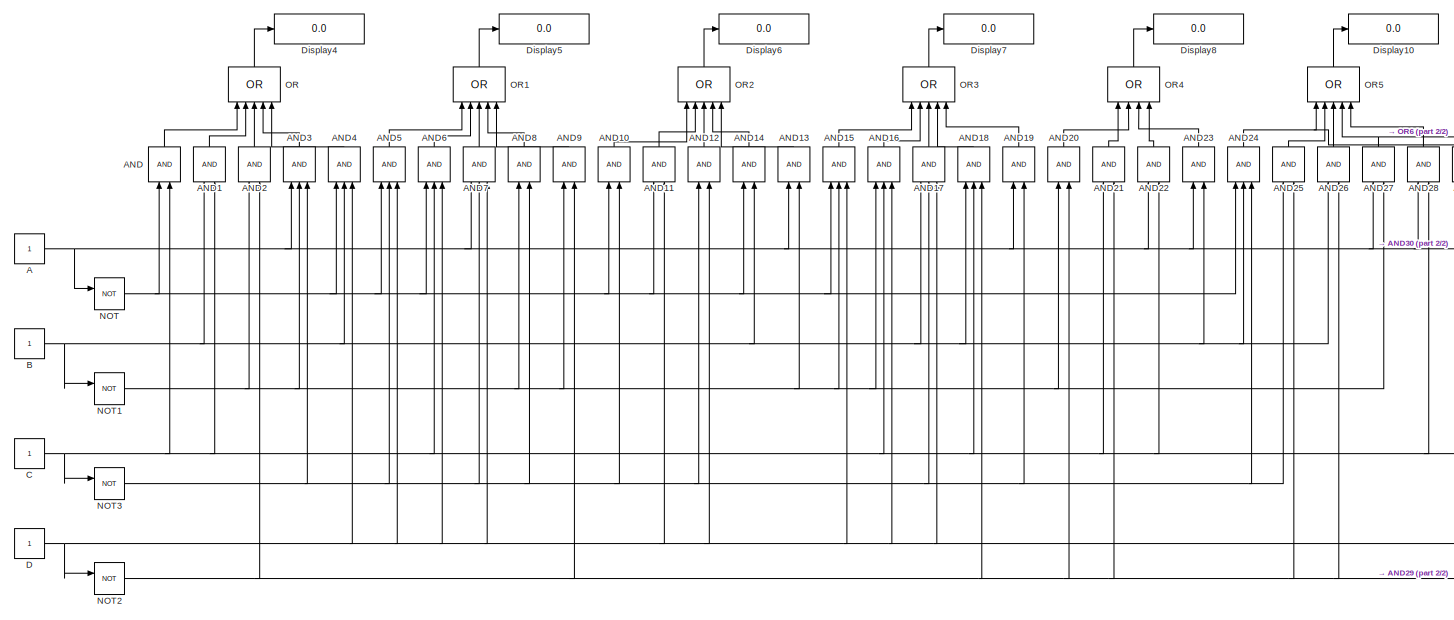
[diagram: root canvas - part 1/2, most of the canvas]
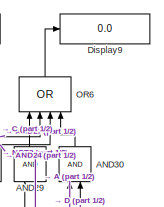
[diagram: root canvas - part 2/2, top right region]
MODEL slx_f6d2cf7f9183
KIND model
CONFIG AbsTol = auto
CONFIG EnableMultiTasking = off
CONFIG FixedStep = auto
CONFIG MaxStep = auto
CONFIG MinStep = auto
CONFIG RelTol = 1e-3
CONFIG SampleTimeConstraint = Unconstrained
CONFIG SolverName = VariableStepAuto
CONFIG StartTime = 0.0
CONFIG StopTime = 10.0
BLOCK [Constant] A
BLOCK [Logic] AND
  AllPortsSameDT = off
  IconShape = distinctive
  NameLocation = right
  OutDataTypeStr = boolean
BLOCK [Logic] AND1
  AllPortsSameDT = off
  IconShape = distinctive
  NameLocation = right
  OutDataTypeStr = boolean
BLOCK [Logic] AND10
  AllPortsSameDT = off
  IconShape = distinctive
  NameLocation = right
  OutDataTypeStr = boolean
BLOCK [Logic] AND11
  AllPortsSameDT = off
  IconShape = distinctive
  NameLocation = right
  OutDataTypeStr = boolean
BLOCK [Logic] AND12
  AllPortsSameDT = off
  IconShape = distinctive
  NameLocation = right
  OutDataTypeStr = boolean
BLOCK [Logic] AND13
  AllPortsSameDT = off
  IconShape = distinctive
  NameLocation = right
  OutDataTypeStr = boolean
BLOCK [Logic] AND14
  AllPortsSameDT = off
  IconShape = distinctive
  NameLocation = right
  OutDataTypeStr = boolean
BLOCK [Logic] AND15
  AllPortsSameDT = off
  IconShape = distinctive
  Inputs = 3
  NameLocation = right
  OutDataTypeStr = boolean
BLOCK [Logic] AND16
  AllPortsSameDT = off
  IconShape = distinctive
  Inputs = 3
  NameLocation = right
  OutDataTypeStr = boolean
BLOCK [Logic] AND17
  AllPortsSameDT = off
  IconShape = distinctive
  Inputs = 3
  NameLocation = right
  OutDataTypeStr = boolean
BLOCK [Logic] AND18
  AllPortsSameDT = off
  IconShape = distinctive
  Inputs = 3
  NameLocation = right
  OutDataTypeStr = boolean
BLOCK [Logic] AND19
  AllPortsSameDT = off
  IconShape = distinctive
  NameLocation = right
  OutDataTypeStr = boolean
BLOCK [Logic] AND2
  AllPortsSameDT = off
  IconShape = distinctive
  NameLocation = right
  OutDataTypeStr = boolean
BLOCK [Logic] AND20
  AllPortsSameDT = off
  IconShape = distinctive
  NameLocation = right
  OutDataTypeStr = boolean
BLOCK [Logic] AND21
  AllPortsSameDT = off
  IconShape = distinctive
  NameLocation = right
  OutDataTypeStr = boolean
BLOCK [Logic] AND22
  AllPortsSameDT = off
  IconShape = distinctive
  NameLocation = right
  OutDataTypeStr = boolean
BLOCK [Logic] AND23
  AllPortsSameDT = off
  IconShape = distinctive
  NameLocation = right
  OutDataTypeStr = boolean
BLOCK [Logic] AND24
  AllPortsSameDT = off
  IconShape = distinctive
  Inputs = 3
  NameLocation = right
  OutDataTypeStr = boolean
BLOCK [Logic] AND25
  AllPortsSameDT = off
  IconShape = distinctive
  NameLocation = right
  OutDataTypeStr = boolean
BLOCK [Logic] AND26
  AllPortsSameDT = off
  IconShape = distinctive
  NameLocation = right
  OutDataTypeStr = boolean
BLOCK [Logic] AND27
  AllPortsSameDT = off
  IconShape = distinctive
  NameLocation = right
  OutDataTypeStr = boolean
BLOCK [Logic] AND28
  AllPortsSameDT = off
  IconShape = distinctive
  NameLocation = right
  OutDataTypeStr = boolean
BLOCK [Logic] AND29
  AllPortsSameDT = off
  IconShape = distinctive
  NameLocation = right
  OutDataTypeStr = boolean
BLOCK [Logic] AND3
  AllPortsSameDT = off
  IconShape = distinctive
  Inputs = 3
  NameLocation = right
  OutDataTypeStr = boolean
BLOCK [Logic] AND30
  AllPortsSameDT = off
  IconShape = distinctive
  NameLocation = right
  OutDataTypeStr = boolean
BLOCK [Logic] AND4
  AllPortsSameDT = off
  IconShape = distinctive
  Inputs = 3
  NameLocation = right
  OutDataTypeStr = boolean
BLOCK [Logic] AND5
  AllPortsSameDT = off
  IconShape = distinctive
  Inputs = 3
  NameLocation = right
  OutDataTypeStr = boolean
BLOCK [Logic] AND6
  AllPortsSameDT = off
  IconShape = distinctive
  Inputs = 3
  NameLocation = right
  OutDataTypeStr = boolean
BLOCK [Logic] AND7
  AllPortsSameDT = off
  IconShape = distinctive
  Inputs = 3
  NameLocation = right
  OutDataTypeStr = boolean
BLOCK [Logic] AND8
  AllPortsSameDT = off
  IconShape = distinctive
  NameLocation = right
  OutDataTypeStr = boolean
BLOCK [Logic] AND9
  AllPortsSameDT = off
  IconShape = distinctive
  NameLocation = right
  OutDataTypeStr = boolean
BLOCK [Constant] B
BLOCK [Constant] C
BLOCK [Constant] D
BLOCK [Display] Display10
  Decimation = 1
BLOCK [Display] Display4
  Decimation = 1
BLOCK [Display] Display5
  Decimation = 1
BLOCK [Display] Display6
  Decimation = 1
BLOCK [Display] Display7
  Decimation = 1
BLOCK [Display] Display8
  Decimation = 1
BLOCK [Display] Display9
  Decimation = 1
BLOCK [Logic] NOT
  AllPortsSameDT = off
  IconShape = distinctive
  Operator = NOT
  OutDataTypeStr = boolean
BLOCK [Logic] NOT1
  AllPortsSameDT = off
  IconShape = distinctive
  Operator = NOT
  OutDataTypeStr = boolean
BLOCK [Logic] NOT2
  AllPortsSameDT = off
  IconShape = distinctive
  Operator = NOT
  OutDataTypeStr = boolean
BLOCK [Logic] NOT3
  AllPortsSameDT = off
  IconShape = distinctive
  Operator = NOT
  OutDataTypeStr = boolean
BLOCK [Logic] OR
  AllPortsSameDT = off
  IconShape = distinctive
  Inputs = 5
  NameLocation = right
  Operator = OR
  OutDataTypeStr = boolean
BLOCK [Logic] OR1
  AllPortsSameDT = off
  IconShape = distinctive
  Inputs = 5
  NameLocation = right
  Operator = OR
  OutDataTypeStr = boolean
BLOCK [Logic] OR2
  AllPortsSameDT = off
  IconShape = distinctive
  Inputs = 5
  NameLocation = right
  Operator = OR
  OutDataTypeStr = boolean
BLOCK [Logic] OR3
  AllPortsSameDT = off
  IconShape = distinctive
  Inputs = 5
  NameLocation = right
  Operator = OR
  OutDataTypeStr = boolean
BLOCK [Logic] OR4
  AllPortsSameDT = off
  IconShape = distinctive
  Inputs = 4
  NameLocation = right
  Operator = OR
  OutDataTypeStr = boolean
BLOCK [Logic] OR5
  AllPortsSameDT = off
  IconShape = distinctive
  Inputs = 5
  NameLocation = right
  Operator = OR
  OutDataTypeStr = boolean
BLOCK [Logic] OR6
  AllPortsSameDT = off
  IconShape = distinctive
  Inputs = 4
  NameLocation = right
  Operator = OR
  OutDataTypeStr = boolean
NET A:1 -> AND13:1, AND19:1, AND22:1, AND23:1, AND27:1, AND28:1, AND30:1, AND3:1, AND7:1, NOT:1
LINE AND10:1 -> OR2:1
LINE AND11:1 -> OR2:2
LINE AND12:1 -> OR2:3
LINE AND13:1 -> OR2:5
LINE AND14:1 -> OR2:4
LINE AND15:1 -> OR3:1
LINE AND16:1 -> OR3:2
LINE AND17:1 -> OR3:3
LINE AND18:1 -> OR3:4
LINE AND19:1 -> OR3:5
LINE AND1:1 -> OR:2
LINE AND20:1 -> OR4:2
LINE AND21:1 -> OR4:1
LINE AND22:1 -> OR4:4
LINE AND23:1 -> OR4:3
NET AND24:1 -> OR5:1, OR6:3
LINE AND25:1 -> OR5:2
LINE AND26:1 -> OR5:3
NET AND27:1 -> OR5:4, OR6:2
LINE AND28:1 -> OR5:5
LINE AND29:1 -> OR6:1
LINE AND2:1 -> OR:3
LINE AND30:1 -> OR6:4
LINE AND3:1 -> OR:4
LINE AND4:1 -> OR:5
LINE AND5:1 -> OR1:1
LINE AND6:1 -> OR1:2
LINE AND7:1 -> OR1:3
LINE AND8:1 -> OR1:4
LINE AND9:1 -> OR1:5
LINE AND:1 -> OR:1
NET B:1 -> AND14:2, AND17:1, AND18:1, AND1:1, AND23:2, AND24:2, AND26:1, AND4:2, NOT1:1
NET C:1 -> AND16:2, AND18:2, AND1:2, AND21:1, AND22:2, AND28:2, AND29:1, AND6:2, AND:2, NOT3:1
NET D:1 -> AND11:2, AND12:2, AND15:3, AND16:3, AND17:3, AND30:2, AND4:3, AND5:3, AND6:3, AND7:3, NOT2:1
NET NOT1:1 -> AND13:2, AND15:2, AND16:1, AND20:1, AND27:2, AND2:1, AND3:2, AND8:1, AND9:1
NET NOT2:1 -> AND18:3, AND20:2, AND21:2, AND25:2, AND26:2, AND29:2, AND2:2, AND9:2
NET NOT3:1 -> AND10:2, AND12:1, AND17:2, AND19:2, AND24:3, AND25:1, AND3:3, AND5:2, AND7:2, AND8:2
NET NOT:1 -> AND10:1, AND11:1, AND14:1, AND15:1, AND24:1, AND4:1, AND5:1, AND6:1, AND:1
LINE OR1:1 -> Display5:1
LINE OR2:1 -> Display6:1
LINE OR3:1 -> Display7:1
LINE OR4:1 -> Display8:1
LINE OR5:1 -> Display10:1
LINE OR6:1 -> Display9:1
LINE OR:1 -> Display4:1
note: NET lines group one-source signal fan-out (src -> all destinations, sorted); 1:1 wires keep LINE
